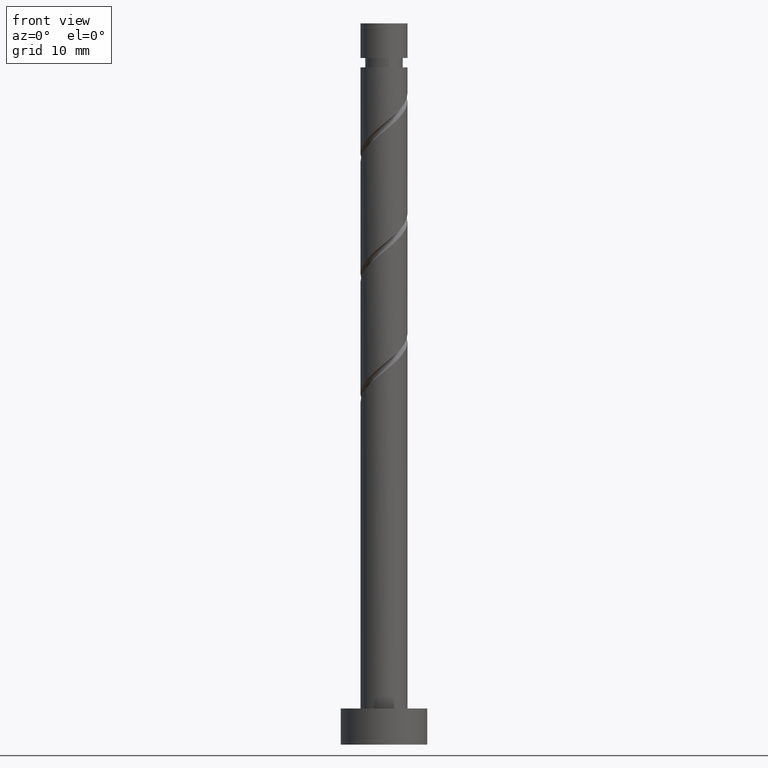
[diagram: clean part render]
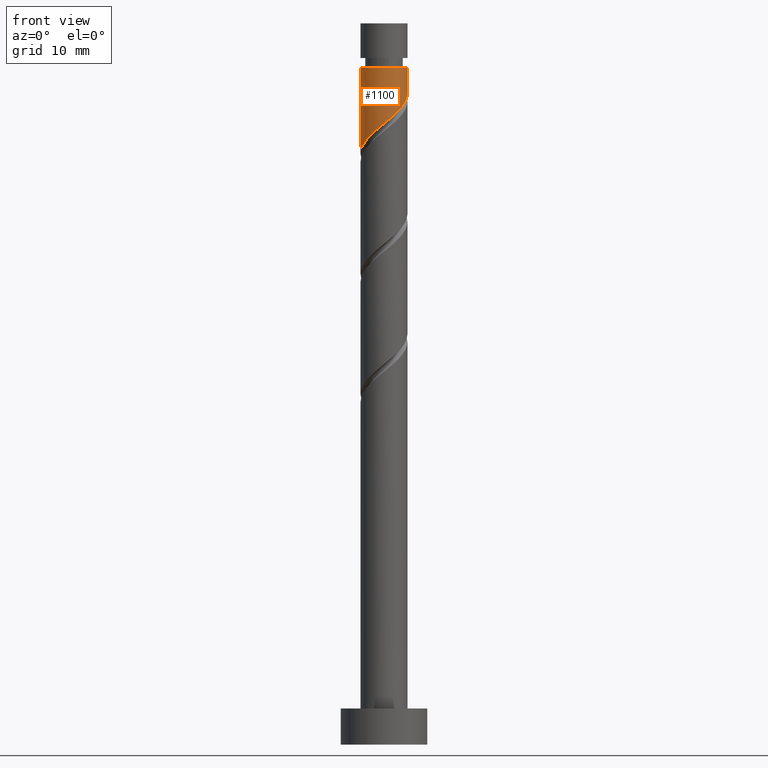
[diagram: same view with one face highlighted and labeled with its STEP entity id]
A machine part, front view. The second image highlights one B-rep face of the part: STEP entity #1100.
In plain terms, the highlighted cylindrical surface (edge-blend (fillet) strip) has radius 3.25 mm, axis along (-0, -0, -1).
Its self-contained STEP definition (entity closure, byte-faithful):
#52 = DIRECTION ( 'NONE',  ( -1.000000000000000000, 0.000000000000000000, 0.000000000000000000 ) ) ;
#98 = AXIS2_PLACEMENT_3D ( 'NONE', #272, #283, #1223 ) ;
#175 = CARTESIAN_POINT ( 'NONE',  ( 3.250000000000000000, 4.481689964068148506E-17, 90.26525276415063104 ) ) ;
#176 = CARTESIAN_POINT ( 'NONE',  ( 1.048331655396443907, -3.129201429098505294, 86.95662009805077730 ) ) ;
#188 = CARTESIAN_POINT ( 'NONE',  ( -1.697072685567708961, -2.771722262402927850, 84.64180528323598196 ) ) ;
#193 = CARTESIAN_POINT ( 'NONE',  ( 3.250000000000000444, 3.980102097228898231E-16, 100.0000000000000000 ) ) ;
#196 = VERTEX_POINT ( 'NONE', #936 ) ;
#207 = CARTESIAN_POINT ( 'NONE',  ( -1.208343267675765720, -3.070961965091886903, 85.10476824619892966 ) ) ;
#255 = ORIENTED_EDGE ( 'NONE', *, *, #1426, .T. ) ;
#272 = CARTESIAN_POINT ( 'NONE',  ( 0.000000000000000000, 0.000000000000000000, 93.90106454249522017 ) ) ;
#283 = DIRECTION ( 'NONE',  ( -0.000000000000000000, -0.000000000000000000, -1.000000000000000000 ) ) ;
#301 = CARTESIAN_POINT ( 'NONE',  ( 1.551845548691958454, -2.855569188971780026, 87.41958306101372500 ) ) ;
#339 = DIRECTION ( 'NONE',  ( -0.000000000000000000, -0.000000000000000000, -1.000000000000000000 ) ) ;
#401 = CARTESIAN_POINT ( 'NONE',  ( -3.081661828113088308, -1.032405141962541073, 82.78995343138407748 ) ) ;
#415 = CARTESIAN_POINT ( 'NONE',  ( 3.234133758856097440, -0.6567188693845378289, 89.73439787582856297 ) ) ;
#428 = CARTESIAN_POINT ( 'NONE',  ( 3.250000000000001776, 3.980102097228900204E-16, 93.90106454249522017 ) ) ;
#446 = CARTESIAN_POINT ( 'NONE',  ( -3.250000000000000444, 0.000000000000000000, 100.0000000000000000 ) ) ;
#483 = FACE_OUTER_BOUND ( 'NONE', #742, .T. ) ;
#515 = CARTESIAN_POINT ( 'NONE',  ( 3.024307152428096224, -1.189985818307198517, 89.27143491286558685 ) ) ;
#523 = VECTOR ( 'NONE', #339, 1000.000000000000000 ) ;
#576 = AXIS2_PLACEMENT_3D ( 'NONE', #932, #1274, #52 ) ;
#583 = ORIENTED_EDGE ( 'NONE', *, *, #1032, .F. ) ;
#599 = CIRCLE ( 'NONE', #98, 3.250000000000002220 ) ;
#630 = CARTESIAN_POINT ( 'NONE',  ( -0.08514040056284385982, -3.299038034908111428, 86.03069417212483927 ) ) ;
#643 = VERTEX_POINT ( 'NONE', #175 ) ;
#652 = VERTEX_POINT ( 'NONE', #1205 ) ;
#654 = CARTESIAN_POINT ( 'NONE',  ( 3.249999999999999556, -0.04193044157906720276, 90.23123539021827355 ) ) ;
#662 = LINE ( 'NONE', #446, #1151 ) ;
#736 = CARTESIAN_POINT ( 'NONE',  ( 3.250000000000000000, 4.481689964068147890E-17, 90.26525276415063104 ) ) ;
#742 = EDGE_LOOP ( 'NONE', ( #583, #1217, #255, #1210 ) ) ;
#744 =( BOUNDED_CURVE ( )  B_SPLINE_CURVE ( 2, ( #736, #654, #1231, #415, #515, #1307, #1117, #1099, #301, #176, #1206, #630, #988, #207, #188, #760, #840, #971, #401, #1425, #1442 ),
 .UNSPECIFIED., .F., .T. ) 
 B_SPLINE_CURVE_WITH_KNOTS ( ( 3, 2, 2, 2, 2, 2, 2, 2, 2, 2, 3 ),
 ( 0.3045248053855290071, 0.3055555555555555802, 0.3194444444444444198, 0.3333333333333333148, 0.3472222222222222099, 0.3611111111111111049, 0.3750000000000000000, 0.3888888888888888951, 0.4027777777777777901, 0.4166666666666666852, 0.4295248053855289516 ),
 .UNSPECIFIED. ) 
 CURVE ( )  GEOMETRIC_REPRESENTATION_ITEM ( )  RATIONAL_B_SPLINE_CURVE ( ( 0.9071930855141184802, 0.9080659294509660917, 0.9090909090909061741, 0.8952797754656408591, 0.9090909090909061741, 0.8952797754656408591, 0.9090909090909061741, 0.8952797754656408591, 0.9090909090909061741, 0.8952797754656408591, 0.9090909090909061741, 0.8952797754656408591, 0.9090909090909061741, 0.8952797754656408591, 0.9090909090909061741, 0.8952797754656408591, 0.9090909090909061741, 0.8952797754656408591, 0.9090909090909061741, 0.8963047551055810525, 0.9071930855141182581 ) ) 
 REPRESENTATION_ITEM ( '' )  );
#760 = CARTESIAN_POINT ( 'NONE',  ( -2.185802103459652646, -2.472482559713967909, 84.17884232027300584 ) ) ;
#840 = CARTESIAN_POINT ( 'NONE',  ( -2.542711525011296825, -2.024133913696108955, 83.71587935731004393 ) ) ;
#932 = CARTESIAN_POINT ( 'NONE',  ( 0.000000000000000000, 0.000000000000000000, 100.0000000000000000 ) ) ;
#936 = CARTESIAN_POINT ( 'NONE',  ( -3.250000000000000000, -1.299690089579763153E-15, 81.93191943081733086 ) ) ;
#957 = CYLINDRICAL_SURFACE ( 'NONE', #576, 3.250000000000000444 ) ;
#971 = CARTESIAN_POINT ( 'NONE',  ( -2.899620946562940116, -1.575785267678251111, 83.25291639434711044 ) ) ;
#988 = CARTESIAN_POINT ( 'NONE',  ( -0.6467418341193040821, -3.184999999999999609, 85.56773120916189157 ) ) ;
#1032 = EDGE_CURVE ( 'NONE', #1181, #643, #1120, .T. ) ;
#1099 = CARTESIAN_POINT ( 'NONE',  ( 2.055359441987472557, -2.581936948845056090, 87.88254602397670112 ) ) ;
#1100 = ADVANCED_FACE ( 'NONE', ( #483 ), #957, .T. ) ;
#1117 = CARTESIAN_POINT ( 'NONE',  ( 2.434919993993784004, -2.152594858037458980, 88.34550898693970566 ) ) ;
#1120 = LINE ( 'NONE', #193, #523 ) ;
#1136 = DIRECTION ( 'NONE',  ( -0.000000000000000000, -0.000000000000000000, -1.000000000000000000 ) ) ;
#1151 = VECTOR ( 'NONE', #1136, 1000.000000000000000 ) ;
#1161 = EDGE_CURVE ( 'NONE', #1181, #652, #599, .T. ) ;
#1171 = EDGE_CURVE ( 'NONE', #643, #196, #744, .T. ) ;
#1181 = VERTEX_POINT ( 'NONE', #428 ) ;
#1205 = CARTESIAN_POINT ( 'NONE',  ( -3.250000000000001776, 0.000000000000000000, 93.90106454249522017 ) ) ;
#1206 = CARTESIAN_POINT ( 'NONE',  ( 0.4815956274168009532, -3.214119732003307917, 86.49365713508782960 ) ) ;
#1210 = ORIENTED_EDGE ( 'NONE', *, *, #1171, .F. ) ;
#1217 = ORIENTED_EDGE ( 'NONE', *, *, #1161, .T. ) ;
#1223 = DIRECTION ( 'NONE',  ( -1.000000000000000000, 0.000000000000000000, 0.000000000000000000 ) ) ;
#1231 = CARTESIAN_POINT ( 'NONE',  ( 3.248918234259666971, -0.08384692656885367468, 90.19736083879149646 ) ) ;
#1274 = DIRECTION ( 'NONE',  ( -0.000000000000000000, -0.000000000000000000, -1.000000000000000000 ) ) ;
#1307 = CARTESIAN_POINT ( 'NONE',  ( 2.814480546000095895, -1.723252767229862537, 88.80847194990262494 ) ) ;
#1425 = CARTESIAN_POINT ( 'NONE',  ( -3.249999999999997780, -0.5299267084164878128, 82.36183894318294563 ) ) ;
#1426 = EDGE_CURVE ( 'NONE', #652, #196, #662, .T. ) ;
#1442 = CARTESIAN_POINT ( 'NONE',  ( -3.250000000000000000, -1.299690089579763153E-15, 81.93191943081733086 ) ) ;